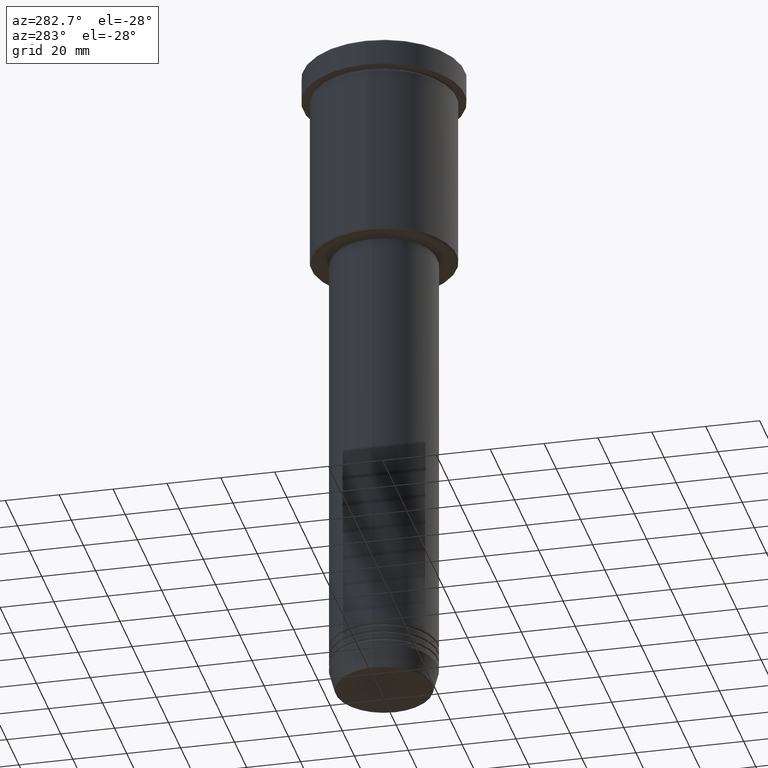
[diagram: clean part render]
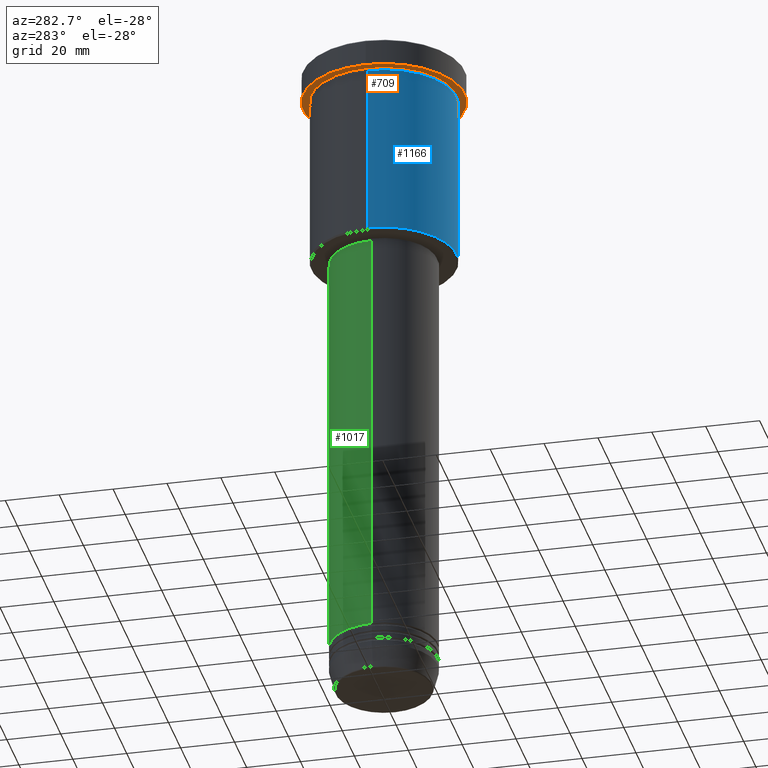
[diagram: same view with three faces highlighted in distinct colors, each labeled with its STEP entity id]
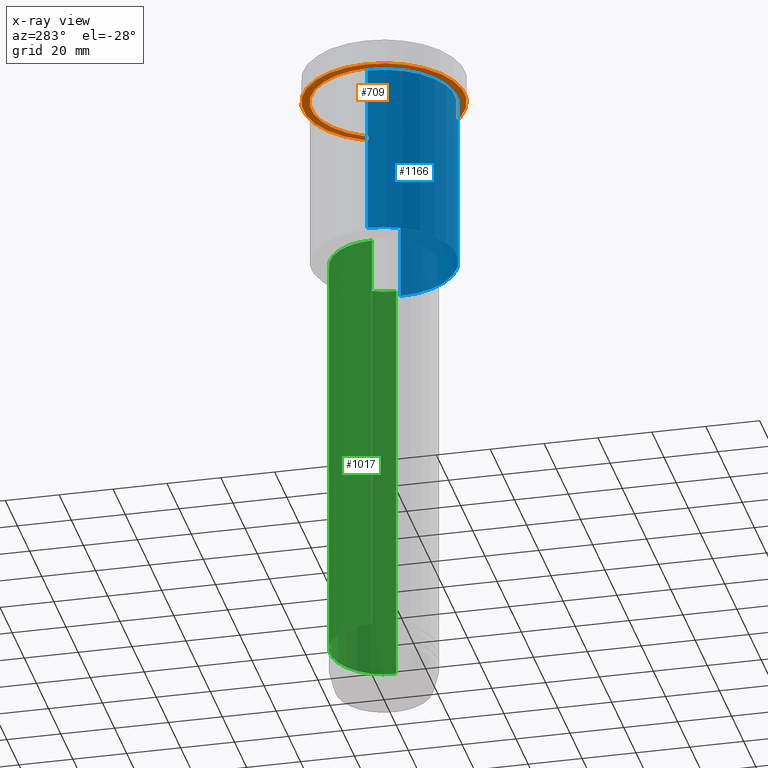
[diagram: x-ray of the same camera — body ghosted, the three highlighted faces saturated]
A machine part, auxiliary view with three faces highlighted in distinct colors.
The next image is the same camera in x-ray (body ghosted, the three faces saturated) — at least one of them is partly hidden behind the body in this view.
Their STEP definitions:

[orange] entity #709 — the highlighted planar face has unit normal (0, 0, -1).
#20 = EDGE_CURVE ( 'NONE', #441, #1162, #1083, .T. ) ;
#45 = EDGE_CURVE ( 'NONE', #1012, #1151, #614, .T. ) ;
#65 = DIRECTION ( 'NONE',  ( 1.000000000000000000, 0.000000000000000000, 0.000000000000000000 ) ) ;
#87 = AXIS2_PLACEMENT_3D ( 'NONE', #940, #481, #399 ) ;
#103 = DIRECTION ( 'NONE',  ( 0.000000000000000000, 0.000000000000000000, -1.000000000000000000 ) ) ;
#110 = AXIS2_PLACEMENT_3D ( 'NONE', #532, #639, #1015 ) ;
#167 = DIRECTION ( 'NONE',  ( -1.000000000000000000, 0.000000000000000000, -0.000000000000000000 ) ) ;
#221 = CARTESIAN_POINT ( 'NONE',  ( 30.00000000000000000, 0.000000000000000000, -9.999999999999992895 ) ) ;
#257 = FACE_OUTER_BOUND ( 'NONE', #1124, .T. ) ;
#297 = AXIS2_PLACEMENT_3D ( 'NONE', #309, #687, #875 ) ;
#309 = CARTESIAN_POINT ( 'NONE',  ( 0.000000000000000000, 0.000000000000000000, -9.999999999999992895 ) ) ;
#321 = CARTESIAN_POINT ( 'NONE',  ( -27.00000000000000355, 0.000000000000000000, -9.999999999999992895 ) ) ;
#361 = FACE_BOUND ( 'NONE', #1167, .T. ) ;
#399 = DIRECTION ( 'NONE',  ( 1.000000000000000000, 0.000000000000000000, 0.000000000000000000 ) ) ;
#433 = DIRECTION ( 'NONE',  ( -0.000000000000000000, -0.000000000000000000, 1.000000000000000000 ) ) ;
#441 = VERTEX_POINT ( 'NONE', #874 ) ;
#443 = EDGE_CURVE ( 'NONE', #1151, #1012, #591, .T. ) ;
#481 = DIRECTION ( 'NONE',  ( -0.000000000000000000, -0.000000000000000000, 1.000000000000000000 ) ) ;
#503 = CIRCLE ( 'NONE', #110, 27.00000000000000355 ) ;
#526 = ORIENTED_EDGE ( 'NONE', *, *, #443, .F. ) ;
#532 = CARTESIAN_POINT ( 'NONE',  ( 0.000000000000000000, 0.000000000000000000, -9.999999999999992895 ) ) ;
#539 = AXIS2_PLACEMENT_3D ( 'NONE', #608, #103, #167 ) ;
#542 = AXIS2_PLACEMENT_3D ( 'NONE', #801, #433, #65 ) ;
#591 = CIRCLE ( 'NONE', #87, 30.00000000000000000 ) ;
#602 = CARTESIAN_POINT ( 'NONE',  ( -30.00000000000000000, 3.673940397442059178E-15, -9.999999999999992895 ) ) ;
#608 = CARTESIAN_POINT ( 'NONE',  ( 0.000000000000000000, 30.00000000000000000, -9.999999999999992895 ) ) ;
#614 = CIRCLE ( 'NONE', #542, 30.00000000000000000 ) ;
#639 = DIRECTION ( 'NONE',  ( -0.000000000000000000, -0.000000000000000000, 1.000000000000000000 ) ) ;
#687 = DIRECTION ( 'NONE',  ( -0.000000000000000000, -0.000000000000000000, 1.000000000000000000 ) ) ;
#706 = ORIENTED_EDGE ( 'NONE', *, *, #20, .T. ) ;
#709 = ADVANCED_FACE ( 'NONE', ( #361, #257 ), #738, .T. ) ;
#738 = PLANE ( 'NONE',  #539 ) ;
#801 = CARTESIAN_POINT ( 'NONE',  ( 0.000000000000000000, 0.000000000000000000, -9.999999999999992895 ) ) ;
#841 = ORIENTED_EDGE ( 'NONE', *, *, #45, .F. ) ;
#874 = CARTESIAN_POINT ( 'NONE',  ( 27.00000000000000355, 3.306546357697854128E-15, -9.999999999999992895 ) ) ;
#875 = DIRECTION ( 'NONE',  ( -1.000000000000000000, 0.000000000000000000, 0.000000000000000000 ) ) ;
#940 = CARTESIAN_POINT ( 'NONE',  ( 0.000000000000000000, 0.000000000000000000, -9.999999999999992895 ) ) ;
#989 = ORIENTED_EDGE ( 'NONE', *, *, #1180, .T. ) ;
#1012 = VERTEX_POINT ( 'NONE', #221 ) ;
#1015 = DIRECTION ( 'NONE',  ( -1.000000000000000000, 0.000000000000000000, 0.000000000000000000 ) ) ;
#1083 = CIRCLE ( 'NONE', #297, 27.00000000000000355 ) ;
#1124 = EDGE_LOOP ( 'NONE', ( #841, #526 ) ) ;
#1151 = VERTEX_POINT ( 'NONE', #602 ) ;
#1162 = VERTEX_POINT ( 'NONE', #321 ) ;
#1167 = EDGE_LOOP ( 'NONE', ( #989, #706 ) ) ;
#1180 = EDGE_CURVE ( 'NONE', #1162, #441, #503, .T. ) ;

[blue] entity #1166 — the highlighted cylindrical surface (partial cylindrical patch) has radius 27 mm, axis along (-0, -0, 1).
#69 = DIRECTION ( 'NONE',  ( 1.000000000000000000, 0.000000000000000000, 0.000000000000000000 ) ) ;
#119 = ORIENTED_EDGE ( 'NONE', *, *, #660, .F. ) ;
#120 = CARTESIAN_POINT ( 'NONE',  ( -27.00000000000000355, 3.306546357697854128E-15, -10.99999999999999289 ) ) ;
#155 = CARTESIAN_POINT ( 'NONE',  ( 0.000000000000000000, 0.000000000000000000, 0.000000000000000000 ) ) ;
#165 = DIRECTION ( 'NONE',  ( -0.000000000000000000, -0.000000000000000000, 1.000000000000000000 ) ) ;
#171 = ORIENTED_EDGE ( 'NONE', *, *, #780, .T. ) ;
#190 = CARTESIAN_POINT ( 'NONE',  ( 27.00000000000000355, 0.000000000000000000, 0.000000000000000000 ) ) ;
#201 = CARTESIAN_POINT ( 'NONE',  ( 27.00000000000000355, 0.000000000000000000, -10.99999999999999289 ) ) ;
#237 = CIRCLE ( 'NONE', #1141, 27.00000000000000355 ) ;
#251 = EDGE_CURVE ( 'NONE', #1094, #554, #873, .T. ) ;
#322 = CIRCLE ( 'NONE', #1001, 27.00000000000000355 ) ;
#333 = DIRECTION ( 'NONE',  ( 1.000000000000000000, 0.000000000000000000, 0.000000000000000000 ) ) ;
#426 = ORIENTED_EDGE ( 'NONE', *, *, #1052, .T. ) ;
#431 = VECTOR ( 'NONE', #557, 1000.000000000000000 ) ;
#437 = CARTESIAN_POINT ( 'NONE',  ( -27.00000000000000355, 3.306546357697854128E-15, -75.50000000000008527 ) ) ;
#499 = DIRECTION ( 'NONE',  ( -1.000000000000000000, 0.000000000000000000, 0.000000000000000000 ) ) ;
#515 = DIRECTION ( 'NONE',  ( -0.000000000000000000, -0.000000000000000000, 1.000000000000000000 ) ) ;
#544 = EDGE_LOOP ( 'NONE', ( #1168, #426, #171, #119 ) ) ;
#554 = VERTEX_POINT ( 'NONE', #120 ) ;
#557 = DIRECTION ( 'NONE',  ( -0.000000000000000000, -0.000000000000000000, 1.000000000000000000 ) ) ;
#578 = CARTESIAN_POINT ( 'NONE',  ( -27.00000000000000355, 3.306546357697854128E-15, 0.000000000000000000 ) ) ;
#598 = FACE_OUTER_BOUND ( 'NONE', #544, .T. ) ;
#613 = AXIS2_PLACEMENT_3D ( 'NONE', #155, #515, #69 ) ;
#660 = EDGE_CURVE ( 'NONE', #554, #771, #322, .T. ) ;
#664 = VECTOR ( 'NONE', #1111, 1000.000000000000000 ) ;
#771 = VERTEX_POINT ( 'NONE', #201 ) ;
#780 = EDGE_CURVE ( 'NONE', #1088, #771, #832, .T. ) ;
#832 = LINE ( 'NONE', #190, #664 ) ;
#873 = LINE ( 'NONE', #578, #431 ) ;
#893 = CARTESIAN_POINT ( 'NONE',  ( 27.00000000000000355, 0.000000000000000000, -75.50000000000008527 ) ) ;
#972 = CARTESIAN_POINT ( 'NONE',  ( 0.000000000000000000, 0.000000000000000000, -75.50000000000008527 ) ) ;
#977 = CYLINDRICAL_SURFACE ( 'NONE', #613, 27.00000000000000355 ) ;
#1001 = AXIS2_PLACEMENT_3D ( 'NONE', #1182, #1158, #333 ) ;
#1052 = EDGE_CURVE ( 'NONE', #1094, #1088, #237, .T. ) ;
#1088 = VERTEX_POINT ( 'NONE', #893 ) ;
#1094 = VERTEX_POINT ( 'NONE', #437 ) ;
#1111 = DIRECTION ( 'NONE',  ( -0.000000000000000000, -0.000000000000000000, 1.000000000000000000 ) ) ;
#1141 = AXIS2_PLACEMENT_3D ( 'NONE', #972, #165, #499 ) ;
#1158 = DIRECTION ( 'NONE',  ( -0.000000000000000000, -0.000000000000000000, 1.000000000000000000 ) ) ;
#1166 = ADVANCED_FACE ( 'NONE', ( #598 ), #977, .T. ) ;
#1168 = ORIENTED_EDGE ( 'NONE', *, *, #251, .F. ) ;
#1182 = CARTESIAN_POINT ( 'NONE',  ( 0.000000000000000000, 0.000000000000000000, -10.99999999999999289 ) ) ;

[green] entity #1017 — the highlighted cylindrical surface (partial cylindrical patch) has radius 20 mm, axis along (-0, -0, 1).
#55 = CYLINDRICAL_SURFACE ( 'NONE', #783, 20.00000000000000000 ) ;
#57 = DIRECTION ( 'NONE',  ( -0.000000000000000000, -0.000000000000000000, 1.000000000000000000 ) ) ;
#159 = CIRCLE ( 'NONE', #797, 20.00000000000000000 ) ;
#191 = CARTESIAN_POINT ( 'NONE',  ( 0.000000000000000000, 0.000000000000000000, -234.0000000000000000 ) ) ;
#192 = ORIENTED_EDGE ( 'NONE', *, *, #380, .F. ) ;
#224 = CARTESIAN_POINT ( 'NONE',  ( 0.000000000000000000, 0.000000000000000000, -77.00000000000001421 ) ) ;
#226 = FACE_OUTER_BOUND ( 'NONE', #1114, .T. ) ;
#244 = CARTESIAN_POINT ( 'NONE',  ( 20.00000000000000000, 0.000000000000000000, -234.0000000000000000 ) ) ;
#337 = LINE ( 'NONE', #878, #1061 ) ;
#362 = DIRECTION ( 'NONE',  ( -0.000000000000000000, -0.000000000000000000, 1.000000000000000000 ) ) ;
#380 = EDGE_CURVE ( 'NONE', #1118, #661, #988, .T. ) ;
#496 = CARTESIAN_POINT ( 'NONE',  ( 0.000000000000000000, 0.000000000000000000, 0.000000000000000000 ) ) ;
#525 = EDGE_CURVE ( 'NONE', #1118, #1089, #159, .T. ) ;
#533 = CARTESIAN_POINT ( 'NONE',  ( 20.00000000000000000, 0.000000000000000000, 0.000000000000000000 ) ) ;
#550 = DIRECTION ( 'NONE',  ( -0.000000000000000000, -0.000000000000000000, 1.000000000000000000 ) ) ;
#592 = CARTESIAN_POINT ( 'NONE',  ( -20.00000000000000000, 2.449293598294706513E-15, -77.00000000000001421 ) ) ;
#661 = VERTEX_POINT ( 'NONE', #1074 ) ;
#701 = DIRECTION ( 'NONE',  ( 1.000000000000000000, 0.000000000000000000, 0.000000000000000000 ) ) ;
#716 = VECTOR ( 'NONE', #362, 1000.000000000000000 ) ;
#719 = AXIS2_PLACEMENT_3D ( 'NONE', #224, #1146, #701 ) ;
#783 = AXIS2_PLACEMENT_3D ( 'NONE', #496, #1116, #1135 ) ;
#797 = AXIS2_PLACEMENT_3D ( 'NONE', #191, #550, #839 ) ;
#809 = VERTEX_POINT ( 'NONE', #592 ) ;
#839 = DIRECTION ( 'NONE',  ( 1.000000000000000000, 0.000000000000000000, 0.000000000000000000 ) ) ;
#855 = ORIENTED_EDGE ( 'NONE', *, *, #525, .T. ) ;
#864 = CIRCLE ( 'NONE', #719, 20.00000000000000000 ) ;
#878 = CARTESIAN_POINT ( 'NONE',  ( -20.00000000000000000, 2.449293598294706513E-15, 0.000000000000000000 ) ) ;
#979 = ORIENTED_EDGE ( 'NONE', *, *, #1112, .F. ) ;
#988 = LINE ( 'NONE', #533, #716 ) ;
#1017 = ADVANCED_FACE ( 'NONE', ( #226 ), #55, .T. ) ;
#1036 = ORIENTED_EDGE ( 'NONE', *, *, #1091, .T. ) ;
#1061 = VECTOR ( 'NONE', #57, 1000.000000000000000 ) ;
#1074 = CARTESIAN_POINT ( 'NONE',  ( 20.00000000000000000, 0.000000000000000000, -77.00000000000001421 ) ) ;
#1089 = VERTEX_POINT ( 'NONE', #1160 ) ;
#1091 = EDGE_CURVE ( 'NONE', #1089, #809, #337, .T. ) ;
#1112 = EDGE_CURVE ( 'NONE', #661, #809, #864, .T. ) ;
#1114 = EDGE_LOOP ( 'NONE', ( #855, #1036, #979, #192 ) ) ;
#1116 = DIRECTION ( 'NONE',  ( -0.000000000000000000, -0.000000000000000000, 1.000000000000000000 ) ) ;
#1118 = VERTEX_POINT ( 'NONE', #244 ) ;
#1135 = DIRECTION ( 'NONE',  ( 1.000000000000000000, 0.000000000000000000, 0.000000000000000000 ) ) ;
#1146 = DIRECTION ( 'NONE',  ( -0.000000000000000000, -0.000000000000000000, 1.000000000000000000 ) ) ;
#1160 = CARTESIAN_POINT ( 'NONE',  ( -20.00000000000000000, 2.449293598294706513E-15, -234.0000000000000000 ) ) ;